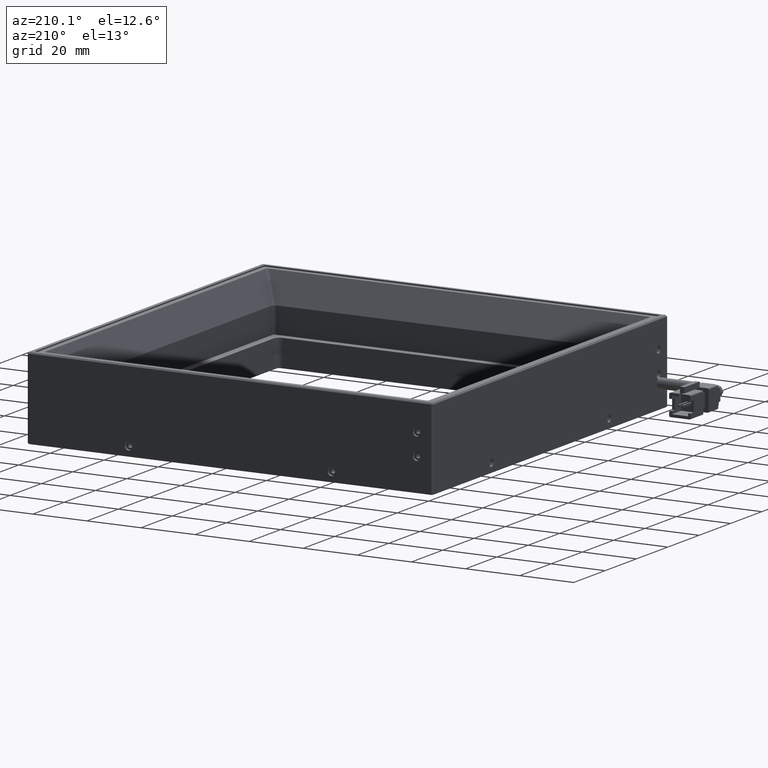
[diagram: clean part render]
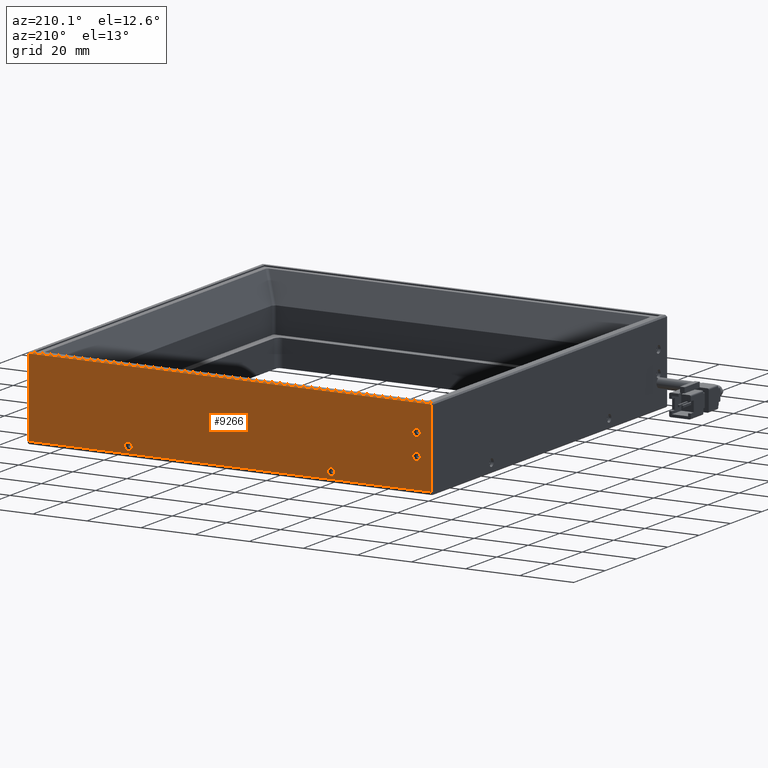
[diagram: same view with one face highlighted and labeled with its STEP entity id]
A machine part, auxiliary view. The second image highlights one B-rep face of the part: STEP entity #9266.
In plain terms, the highlighted planar face has unit normal (-0, -1, 0).
Its self-contained STEP definition (entity closure, byte-faithful):
#19 = CARTESIAN_POINT ( 'NONE',  ( -47.33175061932288900, 85.74938067712629700, -0.09999999999994366200 ) ) ;
#104 = ORIENTED_EDGE ( 'NONE', *, *, #4342, .F. ) ;
#232 = CARTESIAN_POINT ( 'NONE',  ( 27.66824938067711400, 85.74938067712632500, -2.899999999999933700 ) ) ;
#241 = AXIS2_PLACEMENT_3D ( 'NONE', #731, #701, #692 ) ;
#487 = EDGE_CURVE ( 'NONE', #15853, #21221, #758, .T. ) ;
#545 = DIRECTION ( 'NONE',  ( -1.665334536937734600E-016, 1.000000000000000000, 0.0000000000000000000 ) ) ;
#546 = EDGE_LOOP ( 'NONE', ( #16035, #21517, #17389, #3247 ) ) ;
#579 = CARTESIAN_POINT ( 'NONE',  ( 27.66824938067711400, 85.74938067712632500, -0.09999999999995082300 ) ) ;
#692 = DIRECTION ( 'NONE',  ( 0.0000000000000000000, 0.0000000000000000000, -1.000000000000000000 ) ) ;
#701 = DIRECTION ( 'NONE',  ( -1.665334536937734600E-016, 1.000000000000000000, 0.0000000000000000000 ) ) ;
#731 = CARTESIAN_POINT ( 'NONE',  ( 27.66824938067711400, 85.74938067712632500, -1.499999999999942300 ) ) ;
#758 = LINE ( 'NONE', #884, #4691 ) ;
#852 = DIRECTION ( 'NONE',  ( -1.000000000000000000, 1.850371707708600000E-017, 0.0000000000000000000 ) ) ;
#884 = CARTESIAN_POINT ( 'NONE',  ( 65.16824938067711100, 85.74938067712632500, 24.70000000000009200 ) ) ;
#948 = EDGE_CURVE ( 'NONE', #1179, #15853, #9954, .T. ) ;
#984 = EDGE_LOOP ( 'NONE', ( #10223, #104 ) ) ;
#1065 = CARTESIAN_POINT ( 'NONE',  ( -78.83175061932286100, 85.74938067712629700, 7.000000000000062200 ) ) ;
#1136 = ORIENTED_EDGE ( 'NONE', *, *, #3164, .F. ) ;
#1179 = VERTEX_POINT ( 'NONE', #14893 ) ;
#1200 = DIRECTION ( 'NONE',  ( 0.0000000000000000000, 0.0000000000000000000, -1.000000000000000000 ) ) ;
#1299 = LINE ( 'NONE', #8220, #18656 ) ;
#2119 = CARTESIAN_POINT ( 'NONE',  ( 27.66824938067711400, 85.74938067712632500, -1.499999999999942300 ) ) ;
#2169 = DIRECTION ( 'NONE',  ( -1.000000000000000000, 1.850371707708600000E-017, 0.0000000000000000000 ) ) ;
#2199 = DIRECTION ( 'NONE',  ( -1.850371707708600000E-017, -1.000000000000000000, 0.0000000000000000000 ) ) ;
#2268 = CARTESIAN_POINT ( 'NONE',  ( 65.16824938067711100, 85.74938067712632500, -3.999999999999937800 ) ) ;
#2288 = DIRECTION ( 'NONE',  ( -1.665334536937734600E-016, 1.000000000000000000, 0.0000000000000000000 ) ) ;
#2507 = DIRECTION ( 'NONE',  ( -1.665334536937734600E-016, 1.000000000000000000, 0.0000000000000000000 ) ) ;
#2522 = AXIS2_PLACEMENT_3D ( 'NONE', #12609, #2507, #14257 ) ;
#2691 = CARTESIAN_POINT ( 'NONE',  ( -47.33175061932288900, 85.74938067712629700, -2.899999999999940800 ) ) ;
#2739 = PLANE ( 'NONE',  #7722 ) ;
#3043 = LINE ( 'NONE', #20751, #7490 ) ;
#3164 = EDGE_CURVE ( 'NONE', #10873, #10931, #10681, .T. ) ;
#3247 = ORIENTED_EDGE ( 'NONE', *, *, #11261, .F. ) ;
#3544 = VERTEX_POINT ( 'NONE', #19407 ) ;
#3828 = DIRECTION ( 'NONE',  ( 0.0000000000000000000, 0.0000000000000000000, -1.000000000000000000 ) ) ;
#4342 = EDGE_CURVE ( 'NONE', #12451, #3544, #4733, .T. ) ;
#4676 = FACE_BOUND ( 'NONE', #5669, .T. ) ;
#4691 = VECTOR ( 'NONE', #852, 1000.000000000000000 ) ;
#4733 = CIRCLE ( 'NONE', #19826, 1.399999999999984600 ) ;
#5305 = DIRECTION ( 'NONE',  ( 0.0000000000000000000, 0.0000000000000000000, -1.000000000000000000 ) ) ;
#5370 = DIRECTION ( 'NONE',  ( -1.665334536937734600E-016, 1.000000000000000000, 0.0000000000000000000 ) ) ;
#5433 = CARTESIAN_POINT ( 'NONE',  ( -78.83175061932286100, 85.74938067712629700, 15.00000000000006200 ) ) ;
#5669 = EDGE_LOOP ( 'NONE', ( #6690, #6896 ) ) ;
#6518 = VERTEX_POINT ( 'NONE', #7790 ) ;
#6679 = VERTEX_POINT ( 'NONE', #19 ) ;
#6690 = ORIENTED_EDGE ( 'NONE', *, *, #14747, .F. ) ;
#6766 = AXIS2_PLACEMENT_3D ( 'NONE', #6972, #18736, #8693 ) ;
#6896 = ORIENTED_EDGE ( 'NONE', *, *, #9878, .F. ) ;
#6934 = CIRCLE ( 'NONE', #15782, 1.399999999999984600 ) ;
#6972 = CARTESIAN_POINT ( 'NONE',  ( -47.33175061932288900, 85.74938067712629700, -1.499999999999942300 ) ) ;
#7167 = AXIS2_PLACEMENT_3D ( 'NONE', #1065, #545, #1200 ) ;
#7490 = VECTOR ( 'NONE', #8999, 1000.000000000000000 ) ;
#7722 = AXIS2_PLACEMENT_3D ( 'NONE', #2268, #2199, #2169 ) ;
#7790 = CARTESIAN_POINT ( 'NONE',  ( -78.83175061932286100, 85.74938067712629700, 8.400000000000046500 ) ) ;
#8078 = CARTESIAN_POINT ( 'NONE',  ( -84.33175061932281800, 85.74938067712632500, 24.70000000000009200 ) ) ;
#8220 = CARTESIAN_POINT ( 'NONE',  ( 65.16824938067711100, 85.74938067712632500, -3.999999999999937800 ) ) ;
#8508 = VERTEX_POINT ( 'NONE', #19200 ) ;
#8590 = AXIS2_PLACEMENT_3D ( 'NONE', #12401, #2288, #14063 ) ;
#8607 = CARTESIAN_POINT ( 'NONE',  ( -78.83175061932286100, 85.74938067712629700, 5.600000000000076900 ) ) ;
#8647 = CIRCLE ( 'NONE', #7167, 1.399999999999984600 ) ;
#8693 = DIRECTION ( 'NONE',  ( 0.0000000000000000000, 0.0000000000000000000, -1.000000000000000000 ) ) ;
#8886 = CIRCLE ( 'NONE', #2522, 1.399999999999984600 ) ;
#8977 = AXIS2_PLACEMENT_3D ( 'NONE', #2119, #13901, #3828 ) ;
#8999 = DIRECTION ( 'NONE',  ( 0.0000000000000000000, 0.0000000000000000000, -1.000000000000000000 ) ) ;
#9003 = CARTESIAN_POINT ( 'NONE',  ( 64.66824938067705400, 85.74938067712632500, 24.70000000000009500 ) ) ;
#9169 = FACE_BOUND ( 'NONE', #21218, .T. ) ;
#9266 = ADVANCED_FACE ( 'NONE', ( #17518, #13637, #9169, #4676, #13116 ), #2739, .F. ) ;
#9416 = DIRECTION ( 'NONE',  ( -0.0000000000000000000, -0.0000000000000000000, 1.000000000000000000 ) ) ;
#9441 = CARTESIAN_POINT ( 'NONE',  ( 64.66824938067705400, 85.74938067712632500, -3.999999999999937800 ) ) ;
#9878 = EDGE_CURVE ( 'NONE', #6518, #11661, #8647, .T. ) ;
#9908 = DIRECTION ( 'NONE',  ( -1.000000000000000000, -1.665334536937734600E-016, -0.0000000000000000000 ) ) ;
#9954 = LINE ( 'NONE', #9441, #18319 ) ;
#10078 = DIRECTION ( 'NONE',  ( 0.0000000000000000000, 0.0000000000000000000, -1.000000000000000000 ) ) ;
#10157 = DIRECTION ( 'NONE',  ( -1.665334536937734600E-016, 1.000000000000000000, 0.0000000000000000000 ) ) ;
#10223 = ORIENTED_EDGE ( 'NONE', *, *, #11123, .F. ) ;
#10453 = CARTESIAN_POINT ( 'NONE',  ( -78.83175061932286100, 85.74938067712629700, 15.00000000000006200 ) ) ;
#10681 = CIRCLE ( 'NONE', #241, 1.399999999999991500 ) ;
#10873 = VERTEX_POINT ( 'NONE', #579 ) ;
#10931 = VERTEX_POINT ( 'NONE', #232 ) ;
#11123 = EDGE_CURVE ( 'NONE', #3544, #12451, #6934, .T. ) ;
#11196 = ORIENTED_EDGE ( 'NONE', *, *, #18420, .F. ) ;
#11261 = EDGE_CURVE ( 'NONE', #21221, #8508, #3043, .T. ) ;
#11579 = ORIENTED_EDGE ( 'NONE', *, *, #14710, .F. ) ;
#11661 = VERTEX_POINT ( 'NONE', #8607 ) ;
#11916 = VERTEX_POINT ( 'NONE', #2691 ) ;
#12401 = CARTESIAN_POINT ( 'NONE',  ( -47.33175061932288900, 85.74938067712629700, -1.499999999999942300 ) ) ;
#12451 = VERTEX_POINT ( 'NONE', #16538 ) ;
#12609 = CARTESIAN_POINT ( 'NONE',  ( -78.83175061932286100, 85.74938067712629700, 7.000000000000062200 ) ) ;
#13116 = FACE_BOUND ( 'NONE', #984, .T. ) ;
#13205 = EDGE_CURVE ( 'NONE', #10931, #10873, #18416, .T. ) ;
#13622 = CIRCLE ( 'NONE', #6766, 1.399999999999998600 ) ;
#13637 = FACE_BOUND ( 'NONE', #19718, .T. ) ;
#13901 = DIRECTION ( 'NONE',  ( -1.665334536937734600E-016, 1.000000000000000000, 0.0000000000000000000 ) ) ;
#14063 = DIRECTION ( 'NONE',  ( 0.0000000000000000000, 0.0000000000000000000, -1.000000000000000000 ) ) ;
#14257 = DIRECTION ( 'NONE',  ( 0.0000000000000000000, 0.0000000000000000000, -1.000000000000000000 ) ) ;
#14710 = EDGE_CURVE ( 'NONE', #11916, #6679, #17505, .T. ) ;
#14747 = EDGE_CURVE ( 'NONE', #11661, #6518, #8886, .T. ) ;
#14893 = CARTESIAN_POINT ( 'NONE',  ( 64.66824938067705400, 85.74938067712632500, -3.999999999999937800 ) ) ;
#15566 = EDGE_CURVE ( 'NONE', #1179, #8508, #1299, .T. ) ;
#15782 = AXIS2_PLACEMENT_3D ( 'NONE', #5433, #5370, #5305 ) ;
#15853 = VERTEX_POINT ( 'NONE', #9003 ) ;
#16035 = ORIENTED_EDGE ( 'NONE', *, *, #487, .F. ) ;
#16538 = CARTESIAN_POINT ( 'NONE',  ( -78.83175061932286100, 85.74938067712629700, 16.40000000000004500 ) ) ;
#17389 = ORIENTED_EDGE ( 'NONE', *, *, #15566, .T. ) ;
#17505 = CIRCLE ( 'NONE', #8590, 1.399999999999998600 ) ;
#17518 = FACE_OUTER_BOUND ( 'NONE', #546, .T. ) ;
#18319 = VECTOR ( 'NONE', #9416, 1000.000000000000000 ) ;
#18416 = CIRCLE ( 'NONE', #8977, 1.399999999999991500 ) ;
#18420 = EDGE_CURVE ( 'NONE', #6679, #11916, #13622, .T. ) ;
#18656 = VECTOR ( 'NONE', #9908, 1000.000000000000000 ) ;
#18736 = DIRECTION ( 'NONE',  ( -1.665334536937734600E-016, 1.000000000000000000, 0.0000000000000000000 ) ) ;
#19200 = CARTESIAN_POINT ( 'NONE',  ( -84.33175061932284700, 85.74938067712632500, -3.999999999999937800 ) ) ;
#19407 = CARTESIAN_POINT ( 'NONE',  ( -78.83175061932286100, 85.74938067712629700, 13.60000000000007800 ) ) ;
#19718 = EDGE_LOOP ( 'NONE', ( #20303, #1136 ) ) ;
#19826 = AXIS2_PLACEMENT_3D ( 'NONE', #10453, #10157, #10078 ) ;
#20303 = ORIENTED_EDGE ( 'NONE', *, *, #13205, .F. ) ;
#20751 = CARTESIAN_POINT ( 'NONE',  ( -84.33175061932284700, 85.74938067712632500, -3.999999999999937800 ) ) ;
#21218 = EDGE_LOOP ( 'NONE', ( #11579, #11196 ) ) ;
#21221 = VERTEX_POINT ( 'NONE', #8078 ) ;
#21517 = ORIENTED_EDGE ( 'NONE', *, *, #948, .F. ) ;